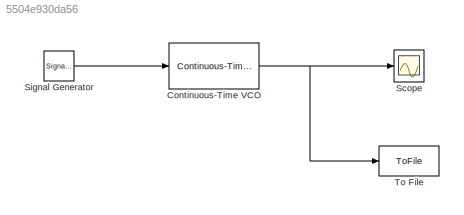
MODEL slx_5504e930da56
KIND model
CONFIG AbsTol = auto
CONFIG EnableMultiTasking = off
CONFIG FixedStep = 1e-8
CONFIG MaxStep = auto
CONFIG MinStep = auto
CONFIG RelTol = 1e-3
CONFIG SampleTimeConstraint = Unconstrained
CONFIG Solver = FixedStepAuto
CONFIG SolverName = FixedStepAuto
CONFIG StartTime = 0.0
CONFIG StopTime = 0.01
BLOCK [Reference] Continuous-Time VCO  REF=commsynccomp2/Continuous-Time
VCO
  Ports = [1, 1]
  SourceBlock = commsynccomp2/Continuous-Time\nVCO
  SourceProductBaseCode = CM
  SourceProductName = Communications Toolbox
  SourceType = Continuous-Time VCO
BLOCK [Scope] Scope
  Floating = off
  NumInputPorts = 1
  Ports = [1]
  ScopeSpecificationString = Simulink.scopes.TimeScopeBlockCfg('CurrentConfiguration', extmgr.ConfigurationSet(extmgr.Configuration('Core','General UI',true),extmgr.Configuration('Core','Source UI',true),extmgr.Configuration('Sources','WiredSimulink',true),extmgr.Configuration('Visuals','Time Domain',true,'SerializedDisplays',{struct('MinYLimReal','-1.23462','MaxYLimReal','1.2469','YLabelReal','','MinYLimMag','0.00000','MaxYL...<+1426ch>
BLOCK [SignalGenerator] Signal Generator
  Frequency = 1e3
  Ports = [0, 1]
  WaveForm = square
BLOCK [ToFile] To File
  Filename = q12.mat
  Ports = [1]
  SampleTime = 1e-8
  SaveFormat = Timeseries
NET Continuous-Time VCO:1 -> Scope:1, To File:1
LINE Signal Generator:1 -> Continuous-Time VCO:1
note: NET lines group one-source signal fan-out (src -> all destinations, sorted); 1:1 wires keep LINE
